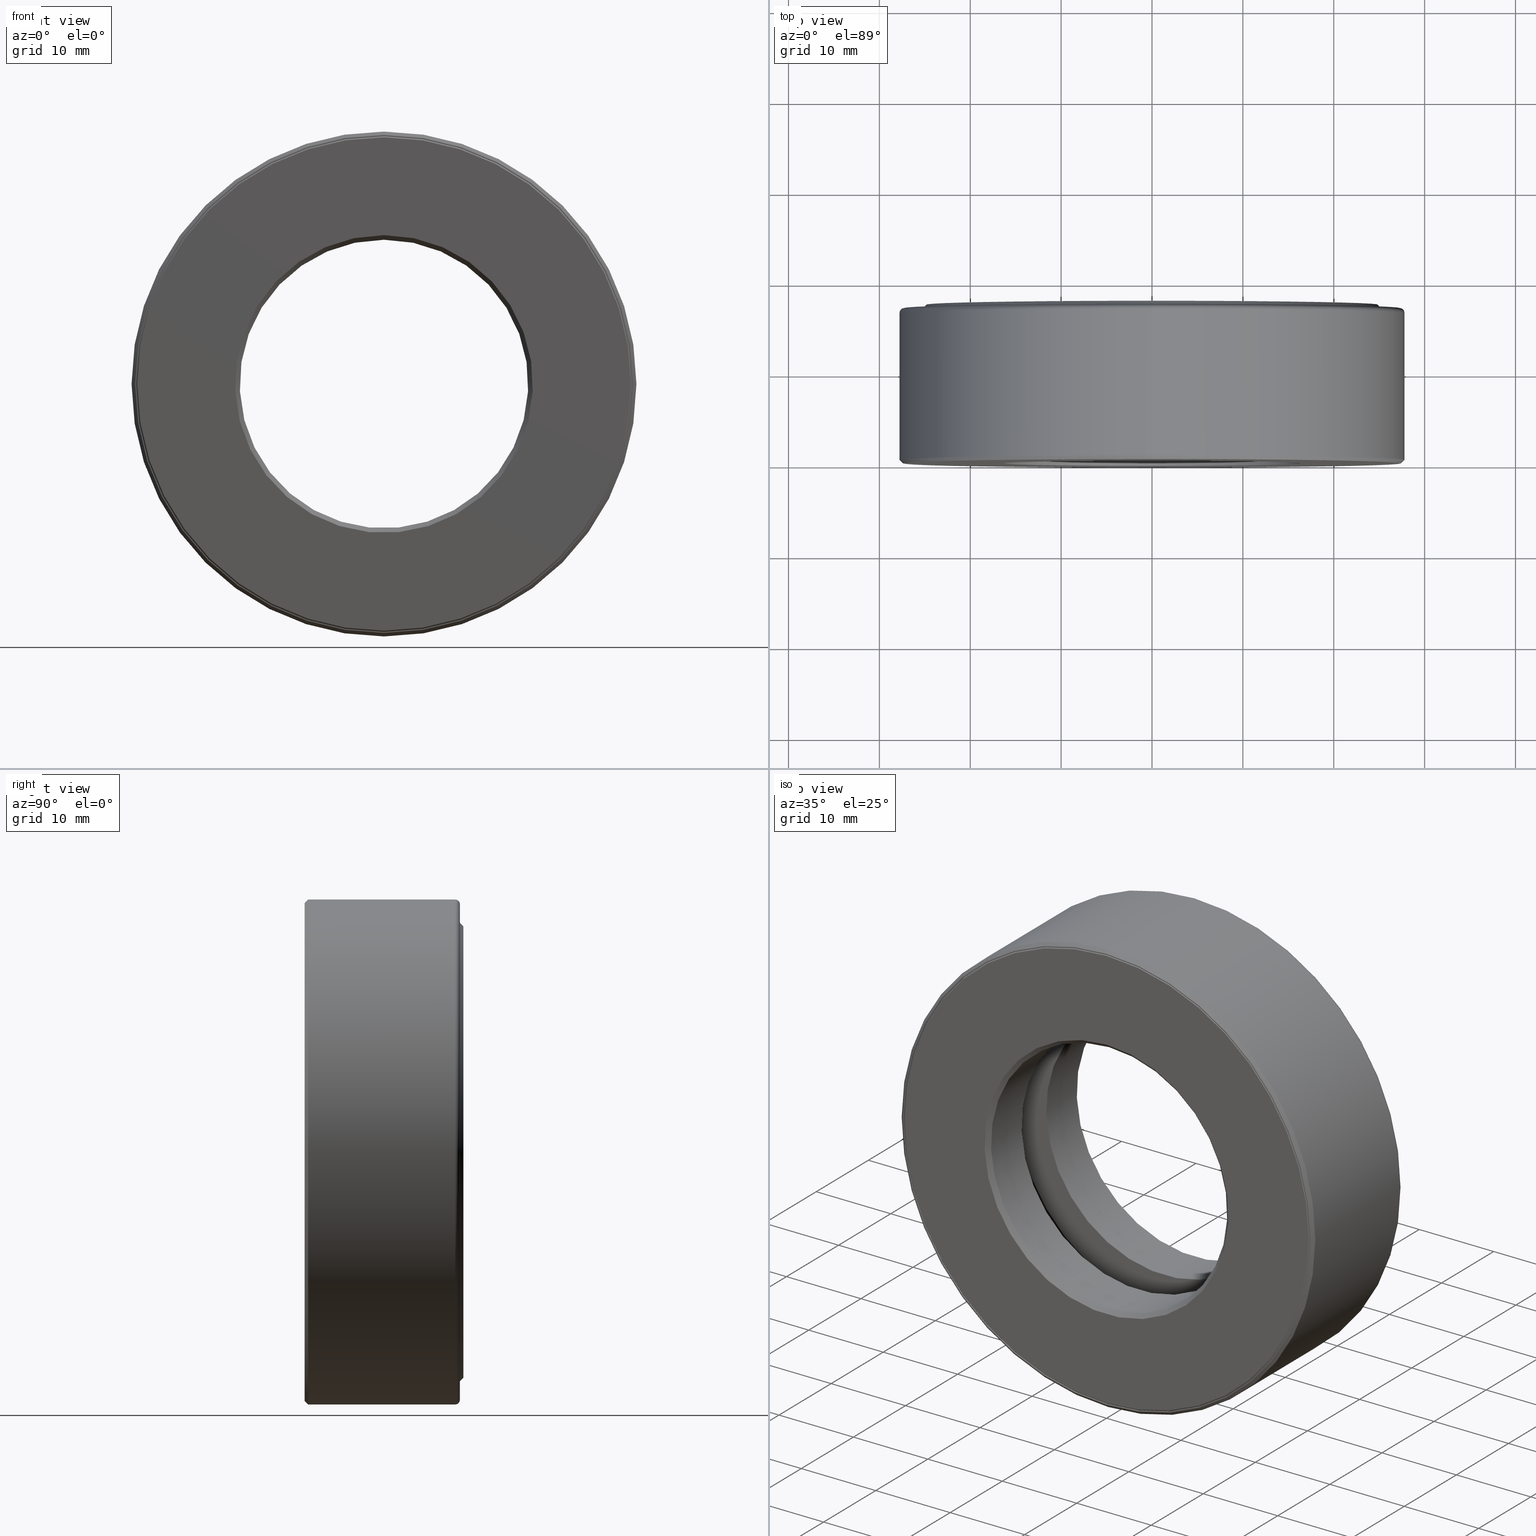
[diagram: canonical four-view strip — front | top / right | iso, engineering-drawing reading convention]
A machine part, canonical four-view strip (front | top / right | iso — engineering-drawing reading convention). The complete STEP part file that produces these views, byte-faithful:
ISO-10303-21;
HEADER;
FILE_DESCRIPTION (( 'STEP AP203' ),
    '1' );
FILE_NAME ('T-100-13.step',
    '2016-06-29T18:27:18',
    ( '' ),
    ( '' ),
    'SwSTEP 2.0',
    'SolidWorks 2016',
    '' );
FILE_SCHEMA (( 'CONFIG_CONTROL_DESIGN' ));
ENDSEC;

DATA;
#1 = CC_DESIGN_PERSON_AND_ORGANIZATION_ASSIGNMENT ( #442, #545, ( #248 ) ) ;
#2 = DIRECTION ( 'NONE',  ( -1.000000000000000000, 0.0000000000000000000, 3.491481338843134500E-015 ) ) ;
#3 = FACE_OUTER_BOUND ( 'NONE', #109, .T. ) ;
#4 = CONICAL_SURFACE ( 'NONE', #6, 1.068750000000000100, 0.7853981633974581600 ) ;
#5 = VERTEX_POINT ( 'NONE', #435 ) ;
#6 = AXIS2_PLACEMENT_3D ( 'NONE', #46, #39, #593 ) ;
#7 = ORIENTED_EDGE ( 'NONE', *, *, #564, .F. ) ;
#8 = PRODUCT ( 'T-100-13', 'T-100-13', '', ( #486 ) ) ;
#9 = ORIENTED_EDGE ( 'NONE', *, *, #113, .T. ) ;
#10 = ADVANCED_FACE ( 'NONE', ( #241, #43 ), #370, .T. ) ;
#11 = FACE_OUTER_BOUND ( 'NONE', #151, .T. ) ;
#12 = LOCAL_TIME ( 14, 27, 18.00000000000000000, #388 ) ;
#13 = ADVANCED_FACE ( 'NONE', ( #381, #456 ), #432, .T. ) ;
#14 = CYLINDRICAL_SURFACE ( 'NONE', #205, 0.6250000000000000000 ) ;
#15 = ORIENTED_EDGE ( 'NONE', *, *, #389, .F. ) ;
#16 = EDGE_CURVE ( 'NONE', #54, #54, #167, .T. ) ;
#17 = FACE_OUTER_BOUND ( 'NONE', #438, .T. ) ;
#18 =( NAMED_UNIT ( * ) SI_UNIT ( $, .STERADIAN. ) SOLID_ANGLE_UNIT ( ) );
#19 = ADVANCED_FACE ( 'NONE', ( ), #387, .T. ) ;
#20 = CIRCLE ( 'NONE', #292, 1.073749999999999800 ) ;
#21 = DIRECTION ( 'NONE',  ( -0.0000000000000000000, 1.000000000000000000, 0.0000000000000000000 ) ) ;
#22 = ORIENTED_EDGE ( 'NONE', *, *, #333, .F. ) ;
#23 = EDGE_LOOP ( 'NONE', ( #164 ) ) ;
#24 = APPROVAL ( #153, 'UNSPECIFIED' ) ;
#25 = APPROVAL_STATUS ( 'not_yet_approved' ) ;
#26 = CIRCLE ( 'NONE', #286, 1.073750000000000000 ) ;
#27 = PERSON_AND_ORGANIZATION ( #177, #458 ) ;
#28 = DIRECTION ( 'NONE',  ( -0.0000000000000000000, 1.000000000000000000, -0.0000000000000000000 ) ) ;
#29 = FACE_OUTER_BOUND ( 'NONE', #490, .T. ) ;
#30 = CARTESIAN_POINT ( 'NONE',  ( 0.0000000000000000000, 0.0000000000000000000, 0.0000000000000000000 ) ) ;
#31 = ORIENTED_EDGE ( 'NONE', *, *, #350, .F. ) ;
#32 = DIRECTION ( 'NONE',  ( -0.0000000000000000000, 1.000000000000000000, -0.0000000000000000000 ) ) ;
#33 = ORIENTED_EDGE ( 'NONE', *, *, #56, .T. ) ;
#34 = CC_DESIGN_APPROVAL ( #498, ( #485 ) ) ;
#35 = VERTEX_POINT ( 'NONE', #238 ) ;
#36 = DIRECTION ( 'NONE',  ( 0.0000000000000000000, 0.0000000000000000000, 1.000000000000000000 ) ) ;
#37 = CARTESIAN_POINT ( 'NONE',  ( 0.0000000000000000000, 0.0000000000000000000, 0.0000000000000000000 ) ) ;
#38 = EDGE_LOOP ( 'NONE', ( #7 ) ) ;
#39 = DIRECTION ( 'NONE',  ( -0.0000000000000000000, 1.000000000000000000, -0.0000000000000000000 ) ) ;
#40 = AXIS2_PLACEMENT_3D ( 'NONE', #252, #399, #200 ) ;
#41 = CARTESIAN_POINT ( 'NONE',  ( 0.0000000000000000000, 0.6524999999999997500, 0.0000000000000000000 ) ) ;
#42 = CARTESIAN_POINT ( 'NONE',  ( -3.231681380517675000E-016, 0.2500000000000000600, 0.0000000000000000000 ) ) ;
#43 = FACE_OUTER_BOUND ( 'NONE', #290, .T. ) ;
#44 = PERSON_AND_ORGANIZATION ( #177, #458 ) ;
#45 = DIRECTION ( 'NONE',  ( -0.0000000000000000000, 1.000000000000000000, -0.0000000000000000000 ) ) ;
#46 = CARTESIAN_POINT ( 'NONE',  ( 0.0000000000000000000, -6.296055922898108400E-017, 0.0000000000000000000 ) ) ;
#47 = EDGE_LOOP ( 'NONE', ( #94 ) ) ;
#48 = DIRECTION ( 'NONE',  ( -0.0000000000000000000, 1.000000000000000000, -0.0000000000000000000 ) ) ;
#49 = CARTESIAN_POINT ( 'NONE',  ( 0.0000000000000000000, 0.0000000000000000000, 0.0000000000000000000 ) ) ;
#50 = FACE_OUTER_BOUND ( 'NONE', #212, .T. ) ;
#51 = DIRECTION ( 'NONE',  ( -0.0000000000000000000, 1.000000000000000000, -0.0000000000000000000 ) ) ;
#52 = DIRECTION ( 'NONE',  ( 0.0000000000000000000, 0.0000000000000000000, 1.000000000000000000 ) ) ;
#53 = AXIS2_PLACEMENT_3D ( 'NONE', #460, #2, #567 ) ;
#54 = VERTEX_POINT ( 'NONE', #368 ) ;
#55 = ORIENTED_EDGE ( 'NONE', *, *, #129, .T. ) ;
#56 = EDGE_CURVE ( 'NONE', #250, #250, #549, .T. ) ;
#57 = CYLINDRICAL_SURFACE ( 'NONE', #163, 0.6250000000000000000 ) ;
#58 = ADVANCED_FACE ( 'NONE', ( ), #440, .T. ) ;
#59 = AXIS2_PLACEMENT_3D ( 'NONE', #414, #445, #496 ) ;
#60 = EDGE_CURVE ( 'NONE', #329, #329, #26, .T. ) ;
#61 = EDGE_LOOP ( 'NONE', ( #364 ) ) ;
#62 = ADVANCED_FACE ( 'NONE', ( ), #487, .T. ) ;
#63 = EDGE_LOOP ( 'NONE', ( #452 ) ) ;
#64 = ADVANCED_FACE ( 'NONE', ( #571, #536 ), #97, .T. ) ;
#65 = PRODUCT_RELATED_PRODUCT_CATEGORY ( 'detail', '', ( #8 ) ) ;
#66 = EDGE_LOOP ( 'NONE', ( #385 ) ) ;
#67 = APPROVAL_ROLE ( '' ) ;
#68 = AXIS2_PLACEMENT_3D ( 'NONE', #317, #318, #76 ) ;
#69 = CIRCLE ( 'NONE', #503, 0.6249999999999998900 ) ;
#70 = CALENDAR_DATE ( 2016, 29, 6 ) ;
#71 = APPROVAL_DATE_TIME ( #322, #24 ) ;
#72 = DIRECTION ( 'NONE',  ( -0.0000000000000000000, 1.000000000000000000, 0.0000000000000000000 ) ) ;
#73 = DIRECTION ( 'NONE',  ( 0.0000000000000000000, 0.0000000000000000000, 1.000000000000000000 ) ) ;
#74 = DIRECTION ( 'NONE',  ( 0.0000000000000000000, 0.0000000000000000000, 1.000000000000000000 ) ) ;
#75 = CIRCLE ( 'NONE', #378, 1.078750000000000100 ) ;
#76 = DIRECTION ( 'NONE',  ( 0.0000000000000000000, 0.0000000000000000000, -1.000000000000000000 ) ) ;
#77 = CARTESIAN_POINT ( 'NONE',  ( 0.0000000000000000000, 0.6724999999999998800, 0.0000000000000000000 ) ) ;
#78 = ORIENTED_EDGE ( 'NONE', *, *, #222, .T. ) ;
#79 = AXIS2_PLACEMENT_3D ( 'NONE', #439, #584, #73 ) ;
#80 = PLANE ( 'NONE',  #59 ) ;
#81 = CARTESIAN_POINT ( 'NONE',  ( 0.0000000000000000000, 0.0000000000000000000, 0.0000000000000000000 ) ) ;
#82 = FACE_OUTER_BOUND ( 'NONE', #236, .T. ) ;
#83 = PERSON_AND_ORGANIZATION ( #177, #458 ) ;
#84 = DIRECTION ( 'NONE',  ( 0.0000000000000000000, -1.000000000000000000, 0.0000000000000000000 ) ) ;
#85 = DIRECTION ( 'NONE',  ( -0.0000000000000000000, 1.000000000000000000, -0.0000000000000000000 ) ) ;
#86 = AXIS2_PLACEMENT_3D ( 'NONE', #525, #168, #513 ) ;
#87 = DIRECTION ( 'NONE',  ( -0.0000000000000000000, 1.000000000000000000, -0.0000000000000000000 ) ) ;
#88 = CARTESIAN_POINT ( 'NONE',  ( 0.0000000000000000000, 0.6524999999999997500, 0.0000000000000000000 ) ) ;
#89 = DIRECTION ( 'NONE',  ( 0.0000000000000000000, 0.0000000000000000000, 1.000000000000000000 ) ) ;
#90 = FACE_BOUND ( 'NONE', #284, .T. ) ;
#91 = CARTESIAN_POINT ( 'NONE',  ( 0.0000000000000000000, 0.6724999999999998800, 0.0000000000000000000 ) ) ;
#92 = DIRECTION ( 'NONE',  ( -0.0000000000000000000, 1.000000000000000000, -0.0000000000000000000 ) ) ;
#93 = VERTEX_POINT ( 'NONE', #431 ) ;
#94 = ORIENTED_EDGE ( 'NONE', *, *, #297, .T. ) ;
#95 = CARTESIAN_POINT ( 'NONE',  ( 0.0000000000000000000, 0.004999999999999648800, 0.0000000000000000000 ) ) ;
#96 = DIRECTION ( 'NONE',  ( 0.0000000000000000000, 0.0000000000000000000, -1.000000000000000000 ) ) ;
#97 = PLANE ( 'NONE',  #515 ) ;
#98 = EDGE_LOOP ( 'NONE', ( #450 ) ) ;
#99 = AXIS2_PLACEMENT_3D ( 'NONE', #504, #526, #524 ) ;
#100 = CARTESIAN_POINT ( 'NONE',  ( 0.0000000000000000000, -6.296055922898108400E-017, 1.068750000000000100 ) ) ;
#101 = EDGE_LOOP ( 'NONE', ( #55 ) ) ;
#102 = CONICAL_SURFACE ( 'NONE', #407, 1.078750000000000100, 0.7853981633974438400 ) ;
#103 = VERTEX_POINT ( 'NONE', #568 ) ;
#104 = EDGE_CURVE ( 'NONE', #483, #483, #423, .T. ) ;
#105 = CLOSED_SHELL ( 'NONE', ( #146, #235, #239, #145, #573, #193, #197, #340, #336, #291, #436, #433, #189, #534, #243, #468 ) ) ;
#106 = ORIENTED_EDGE ( 'NONE', *, *, #591, .T. ) ;
#107 = AXIS2_PLACEMENT_3D ( 'NONE', #510, #550, #505 ) ;
#108 = CIRCLE ( 'NONE', #386, 1.013750000000000200 ) ;
#109 = EDGE_LOOP ( 'NONE', ( #347 ) ) ;
#110 = ORIENTED_EDGE ( 'NONE', *, *, #16, .F. ) ;
#111 = CARTESIAN_POINT ( 'NONE',  ( 0.0000000000000000000, 0.6674999999999995400, 0.6250000000000000000 ) ) ;
#112 = DIRECTION ( 'NONE',  ( -0.0000000000000000000, 1.000000000000000000, -0.0000000000000000000 ) ) ;
#113 = EDGE_CURVE ( 'NONE', #244, #244, #139, .T. ) ;
#114 = FACE_BOUND ( 'NONE', #269, .T. ) ;
#115 = VERTEX_POINT ( 'NONE', #312 ) ;
#116 = DIRECTION ( 'NONE',  ( 0.0000000000000000000, -1.000000000000000000, 0.0000000000000000000 ) ) ;
#117 = ORIENTED_EDGE ( 'NONE', *, *, #157, .T. ) ;
#118 = ORIENTED_EDGE ( 'NONE', *, *, #389, .T. ) ;
#119 = CARTESIAN_POINT ( 'NONE',  ( -1.423893298184202300E-032, -3.148027961449054800E-017, 0.0000000000000000000 ) ) ;
#120 = CC_DESIGN_SECURITY_CLASSIFICATION ( #485, ( #248 ) ) ;
#121 = FACE_BOUND ( 'NONE', #477, .T. ) ;
#122 = VERTEX_POINT ( 'NONE', #572 ) ;
#123 = ORIENTED_EDGE ( 'NONE', *, *, #591, .F. ) ;
#124 = EDGE_LOOP ( 'NONE', ( #253 ) ) ;
#125 = AXIS2_PLACEMENT_3D ( 'NONE', #81, #268, #272 ) ;
#126 = DIRECTION ( 'NONE',  ( 0.0000000000000000000, 0.0000000000000000000, 1.000000000000000000 ) ) ;
#127 = FACE_BOUND ( 'NONE', #138, .T. ) ;
#128 = COORDINATED_UNIVERSAL_TIME_OFFSET ( 5, 0, .BEHIND. ) ;
#129 = EDGE_CURVE ( 'NONE', #122, #122, #369, .T. ) ;
#130 = VERTEX_POINT ( 'NONE', #178 ) ;
#131 = DIRECTION ( 'NONE',  ( -0.0000000000000000000, 1.000000000000000000, -0.0000000000000000000 ) ) ;
#132 = ORIENTED_EDGE ( 'NONE', *, *, #424, .F. ) ;
#133 = CYLINDRICAL_SURFACE ( 'NONE', #397, 1.073749999999999800 ) ;
#134 = CARTESIAN_POINT ( 'NONE',  ( 0.0000000000000000000, 0.2499999999999999200, 0.7834999999999999700 ) ) ;
#135 = CARTESIAN_POINT ( 'NONE',  ( 0.0000000000000000000, 0.6724999999999998800, 0.0000000000000000000 ) ) ;
#136 = VERTEX_POINT ( 'NONE', #188 ) ;
#137 = CLOSED_SHELL ( 'NONE', ( #58 ) ) ;
#138 = EDGE_LOOP ( 'NONE', ( #22 ) ) ;
#139 = CIRCLE ( 'NONE', #437, 1.068750000000000100 ) ;
#140 = APPROVAL_PERSON_ORGANIZATION ( #353, #498, #67 ) ;
#141 = AXIS2_PLACEMENT_3D ( 'NONE', #325, #282, #367 ) ;
#142 = FACE_BOUND ( 'NONE', #190, .T. ) ;
#143 = ORIENTED_EDGE ( 'NONE', *, *, #528, .T. ) ;
#144 = EDGE_LOOP ( 'NONE', ( #523 ) ) ;
#145 = ADVANCED_FACE ( 'NONE', ( #147, #247 ), #402, .F. ) ;
#146 = ADVANCED_FACE ( 'NONE', ( #50, #319 ), #257, .F. ) ;
#147 = FACE_OUTER_BOUND ( 'NONE', #261, .T. ) ;
#148 =( CONVERSION_BASED_UNIT ( 'INCH', #362 ) LENGTH_UNIT ( ) NAMED_UNIT ( #294 ) );
#149 = CARTESIAN_POINT ( 'NONE',  ( 0.0000000000000000000, 0.6524999999999997500, 0.0000000000000000000 ) ) ;
#150 = SECURITY_CLASSIFICATION_LEVEL ( 'unclassified' ) ;
#151 = EDGE_LOOP ( 'NONE', ( #143 ) ) ;
#152 = DIRECTION ( 'NONE',  ( -0.0000000000000000000, 1.000000000000000000, -0.0000000000000000000 ) ) ;
#153 = APPROVAL_STATUS ( 'not_yet_approved' ) ;
#154 = AXIS2_PLACEMENT_3D ( 'NONE', #41, #314, #356 ) ;
#155 = DATE_AND_TIME ( #547, #296 ) ;
#156 = DIRECTION ( 'NONE',  ( 0.0000000000000000000, 0.0000000000000000000, 1.000000000000000000 ) ) ;
#157 = EDGE_CURVE ( 'NONE', #35, #35, #276, .T. ) ;
#158 = PLANE ( 'NONE',  #480 ) ;
#159 = CC_DESIGN_PERSON_AND_ORGANIZATION_ASSIGNMENT ( #519, #303, ( #485 ) ) ;
#160 = DIRECTION ( 'NONE',  ( 0.0000000000000000000, 0.0000000000000000000, 1.000000000000000000 ) ) ;
#161 = EDGE_LOOP ( 'NONE', ( #408 ) ) ;
#162 = VERTEX_POINT ( 'NONE', #475 ) ;
#163 = AXIS2_PLACEMENT_3D ( 'NONE', #30, #28, #553 ) ;
#164 = ORIENTED_EDGE ( 'NONE', *, *, #380, .T. ) ;
#165 = DIRECTION ( 'NONE',  ( 0.0000000000000000000, 0.0000000000000000000, 1.000000000000000000 ) ) ;
#166 = PLANE ( 'NONE',  #566 ) ;
#167 = CIRCLE ( 'NONE', #229, 1.013750000000000200 ) ;
#168 = DIRECTION ( 'NONE',  ( -0.0000000000000000000, 1.000000000000000000, -0.0000000000000000000 ) ) ;
#169 = CARTESIAN_POINT ( 'NONE',  ( 0.0000000000000000000, -6.616194359655631800E-017, 0.0000000000000000000 ) ) ;
#170 = AXIS2_PLACEMENT_3D ( 'NONE', #226, #371, #173 ) ;
#171 = CARTESIAN_POINT ( 'NONE',  ( 0.0000000000000000000, 0.6674999999999995400, 0.0000000000000000000 ) ) ;
#172 = DIRECTION ( 'NONE',  ( 1.000000000000000000, 0.0000000000000000000, 0.0000000000000000000 ) ) ;
#173 = DIRECTION ( 'NONE',  ( 0.0000000000000000000, 0.0000000000000000000, 1.000000000000000000 ) ) ;
#174 = CARTESIAN_POINT ( 'NONE',  ( 0.0000000000000000000, 0.2500000000000001100, 0.6250000000000000000 ) ) ;
#175 = DIRECTION ( 'NONE',  ( -0.0000000000000000000, 1.000000000000000000, -0.0000000000000000000 ) ) ;
#176 = CIRCLE ( 'NONE', #548, 0.7834999999999999700 ) ;
#177 = PERSON ( 'UNSPECIFIED', 'UNSPECIFIED', 'UNSPECIFIED', ('UNSPECIFIED'), ('UNSPECIFIED'), ('UNSPECIFIED') ) ;
#178 = CARTESIAN_POINT ( 'NONE',  ( 0.0000000000000000000, 0.6875000000000000000, 0.6450000000000002400 ) ) ;
#179 = CARTESIAN_POINT ( 'NONE',  ( 0.0000000000000000000, 0.0000000000000000000, 0.0000000000000000000 ) ) ;
#180 = DIRECTION ( 'NONE',  ( -0.0000000000000000000, 1.000000000000000000, -0.0000000000000000000 ) ) ;
#181 = EDGE_LOOP ( 'NONE', ( #484 ) ) ;
#182 = ORIENTED_EDGE ( 'NONE', *, *, #222, .F. ) ;
#183 = DIRECTION ( 'NONE',  ( 0.0000000000000000000, -0.0000000000000000000, -1.000000000000000000 ) ) ;
#184 = FACE_OUTER_BOUND ( 'NONE', #552, .T. ) ;
#185 = EDGE_CURVE ( 'NONE', #162, #162, #541, .T. ) ;
#186 = LOCAL_TIME ( 14, 27, 18.00000000000000000, #128 ) ;
#187 = APPROVAL_PERSON_ORGANIZATION ( #83, #24, #395 ) ;
#188 = CARTESIAN_POINT ( 'NONE',  ( 0.0000000000000000000, 0.4375000000000000000, 1.066749999999999900 ) ) ;
#189 = ADVANCED_FACE ( 'NONE', ( #184, #288 ), #500, .F. ) ;
#190 = EDGE_LOOP ( 'NONE', ( #195 ) ) ;
#191 = UNCERTAINTY_MEASURE_WITH_UNIT (LENGTH_MEASURE( 1.000000000000000100E-005 ), #148, 'distance_accuracy_value', 'NONE');
#192 = FACE_OUTER_BOUND ( 'NONE', #478, .T. ) ;
#193 = ADVANCED_FACE ( 'NONE', ( #121, #201 ), #587, .F. ) ;
#194 = CIRCLE ( 'NONE', #154, 1.073750000000000000 ) ;
#195 = ORIENTED_EDGE ( 'NONE', *, *, #281, .T. ) ;
#196 = EDGE_CURVE ( 'NONE', #542, #542, #546, .T. ) ;
#197 = ADVANCED_FACE ( 'NONE', ( #3, #265 ), #494, .T. ) ;
#198 = DIRECTION ( 'NONE',  ( 0.0000000000000000000, 0.0000000000000000000, 1.000000000000000000 ) ) ;
#199 = PERSON_AND_ORGANIZATION_ROLE ( 'creator' ) ;
#200 = DIRECTION ( 'NONE',  ( 0.0000000000000000000, 0.0000000000000000000, 1.000000000000000000 ) ) ;
#201 = FACE_OUTER_BOUND ( 'NONE', #124, .T. ) ;
#202 = PERSON_AND_ORGANIZATION ( #177, #458 ) ;
#203 = PRODUCT_DEFINITION ( 'UNKNOWN', '', #248, #231 ) ;
#204 = DATE_TIME_ROLE ( 'classification_date' ) ;
#205 = AXIS2_PLACEMENT_3D ( 'NONE', #37, #51, #520 ) ;
#206 = CARTESIAN_POINT ( 'NONE',  ( 0.0000000000000000000, -6.398785730860387700E-017, 0.0000000000000000000 ) ) ;
#207 = CIRCLE ( 'NONE', #86, 1.066749999999999900 ) ;
#208 = CARTESIAN_POINT ( 'NONE',  ( 0.0000000000000000000, 0.01500000000000004500, 0.0000000000000000000 ) ) ;
#209 = DIRECTION ( 'NONE',  ( 0.0000000000000000000, -1.000000000000000000, 0.0000000000000000000 ) ) ;
#210 = FACE_OUTER_BOUND ( 'NONE', #469, .T. ) ;
#211 = PLANE ( 'NONE',  #342 ) ;
#212 = EDGE_LOOP ( 'NONE', ( #182 ) ) ;
#213 = DIRECTION ( 'NONE',  ( -0.0000000000000000000, 1.000000000000000000, -0.0000000000000000000 ) ) ;
#214 = CC_DESIGN_PERSON_AND_ORGANIZATION_ASSIGNMENT ( #383, #581, ( #8 ) ) ;
#215 = DIRECTION ( 'NONE',  ( -0.0000000000000000000, 1.000000000000000000, -0.0000000000000000000 ) ) ;
#216 = CIRCLE ( 'NONE', #338, 0.6450000000000002400 ) ;
#217 = VERTEX_POINT ( 'NONE', #232 ) ;
#218 = CARTESIAN_POINT ( 'NONE',  ( 0.0000000000000000000, 0.6875000000000000000, 0.0000000000000000000 ) ) ;
#219 = AXIS2_PLACEMENT_3D ( 'NONE', #358, #215, #409 ) ;
#220 = ORIENTED_EDGE ( 'NONE', *, *, #129, .F. ) ;
#221 = DIRECTION ( 'NONE',  ( -0.0000000000000000000, 1.000000000000000000, -0.0000000000000000000 ) ) ;
#222 = EDGE_CURVE ( 'NONE', #234, #234, #176, .T. ) ;
#223 = CARTESIAN_POINT ( 'NONE',  ( 0.0000000000000000000, 0.4375000000000000000, 0.0000000000000000000 ) ) ;
#224 = CIRCLE ( 'NONE', #580, 1.073749999999999800 ) ;
#225 = CARTESIAN_POINT ( 'NONE',  ( 0.0000000000000000000, -6.616194359655631800E-017, 0.0000000000000000000 ) ) ;
#226 = CARTESIAN_POINT ( 'NONE',  ( 0.0000000000000000000, 0.4375000000000000000, 0.0000000000000000000 ) ) ;
#227 = ADVANCED_FACE ( 'NONE', ( #411, #127 ), #158, .T. ) ;
#228 = EDGE_LOOP ( 'NONE', ( #592 ) ) ;
#229 = AXIS2_PLACEMENT_3D ( 'NONE', #91, #330, #52 ) ;
#230 = FACE_OUTER_BOUND ( 'NONE', #588, .T. ) ;
#231 = DESIGN_CONTEXT ( 'detailed design', #493, 'design' ) ;
#232 = CARTESIAN_POINT ( 'NONE',  ( 0.0000000000000000000, 0.6524999999999997500, 1.013750000000000200 ) ) ;
#233 = EDGE_CURVE ( 'NONE', #260, #260, #394, .T. ) ;
#234 = VERTEX_POINT ( 'NONE', #134 ) ;
#235 = ADVANCED_FACE ( 'NONE', ( #506, #361 ), #211, .F. ) ;
#236 = EDGE_LOOP ( 'NONE', ( #31 ) ) ;
#237 = CC_DESIGN_PERSON_AND_ORGANIZATION_ASSIGNMENT ( #27, #393, ( #248 ) ) ;
#238 = CARTESIAN_POINT ( 'NONE',  ( 0.0000000000000000000, 0.01500000000000004500, 1.093750000000000000 ) ) ;
#239 = ADVANCED_FACE ( 'NONE', ( #82, #11 ), #133, .F. ) ;
#240 = CARTESIAN_POINT ( 'NONE',  ( 0.0000000000000000000, 0.5995000000000001400, 1.066749999999999900 ) ) ;
#241 = FACE_BOUND ( 'NONE', #384, .T. ) ;
#242 = AXIS2_PLACEMENT_3D ( 'NONE', #77, #209, #447 ) ;
#243 = ADVANCED_FACE ( 'NONE', ( #310, #17 ), #57, .F. ) ;
#244 = VERTEX_POINT ( 'NONE', #100 ) ;
#245 = EDGE_LOOP ( 'NONE', ( #132 ) ) ;
#246 = DATE_TIME_ROLE ( 'creation_date' ) ;
#247 = FACE_BOUND ( 'NONE', #47, .T. ) ;
#248 = PRODUCT_DEFINITION_FORMATION_WITH_SPECIFIED_SOURCE ( 'ANY', '', #8, .NOT_KNOWN. ) ;
#249 = APPLICATION_PROTOCOL_DEFINITION ( 'international standard', 'config_control_design', 1994, #258 ) ;
#250 = VERTEX_POINT ( 'NONE', #174 ) ;
#251 = ORIENTED_EDGE ( 'NONE', *, *, #233, .T. ) ;
#252 = CARTESIAN_POINT ( 'NONE',  ( 0.0000000000000000000, 0.3437500000000000000, 0.0000000000000000000 ) ) ;
#253 = ORIENTED_EDGE ( 'NONE', *, *, #60, .T. ) ;
#254 = DIRECTION ( 'NONE',  ( 1.000000000000000000, 0.0000000000000000000, 0.0000000000000000000 ) ) ;
#255 = AXIS2_PLACEMENT_3D ( 'NONE', #206, #32, #165 ) ;
#256 =( LENGTH_UNIT ( ) NAMED_UNIT ( * ) SI_UNIT ( $, .METRE. ) );
#257 = TOROIDAL_SURFACE ( 'NONE', #40, 0.9084999999999998600, 0.1562499999999999700 ) ;
#258 = APPLICATION_CONTEXT ( 'configuration controlled 3d designs of mechanical parts and assemblies' ) ;
#259 = CALENDAR_DATE ( 2016, 29, 6 ) ;
#260 = VERTEX_POINT ( 'NONE', #529 ) ;
#261 = EDGE_LOOP ( 'NONE', ( #271 ) ) ;
#262 = AXIS2_PLACEMENT_3D ( 'NONE', #171, #48, #89 ) ;
#263 = DIRECTION ( 'NONE',  ( 0.0000000000000000000, -0.0000000000000000000, -1.000000000000000000 ) ) ;
#264 = DIRECTION ( 'NONE',  ( 0.0000000000000000000, -0.0000000000000000000, -1.000000000000000000 ) ) ;
#265 = FACE_OUTER_BOUND ( 'NONE', #101, .T. ) ;
#266 = CARTESIAN_POINT ( 'NONE',  ( 0.0000000000000000000, 0.02000000000000046900, 0.0000000000000000000 ) ) ;
#267 = AXIS2_PLACEMENT_3D ( 'NONE', #208, #131, #426 ) ;
#268 = DIRECTION ( 'NONE',  ( -0.0000000000000000000, 1.000000000000000000, -0.0000000000000000000 ) ) ;
#269 = EDGE_LOOP ( 'NONE', ( #123 ) ) ;
#270 = DIRECTION ( 'NONE',  ( -0.0000000000000000000, 1.000000000000000000, -0.0000000000000000000 ) ) ;
#271 = ORIENTED_EDGE ( 'NONE', *, *, #528, .F. ) ;
#272 = DIRECTION ( 'NONE',  ( 0.0000000000000000000, 0.0000000000000000000, 1.000000000000000000 ) ) ;
#273 = DIRECTION ( 'NONE',  ( 0.0000000000000000000, 0.0000000000000000000, 1.000000000000000000 ) ) ;
#274 = APPROVAL ( #309, 'UNSPECIFIED' ) ;
#275 = DIRECTION ( 'NONE',  ( -0.0000000000000000000, 1.000000000000000000, -0.0000000000000000000 ) ) ;
#276 = CIRCLE ( 'NONE', #267, 1.093750000000000000 ) ;
#277 = CARTESIAN_POINT ( 'NONE',  ( 0.0000000000000000000, 0.2499999999999998900, 0.0000000000000000000 ) ) ;
#278 = APPROVAL_DATE_TIME ( #405, #274 ) ;
#279 = DIRECTION ( 'NONE',  ( 0.0000000000000000000, 0.0000000000000000000, 1.000000000000000000 ) ) ;
#280 = FACE_OUTER_BOUND ( 'NONE', #305, .T. ) ;
#281 = EDGE_CURVE ( 'NONE', #355, #355, #69, .T. ) ;
#282 = DIRECTION ( 'NONE',  ( 0.0000000000000000000, -1.000000000000000000, 0.0000000000000000000 ) ) ;
#283 = CARTESIAN_POINT ( 'NONE',  ( 0.0000000000000000000, 0.0000000000000000000, 0.0000000000000000000 ) ) ;
#284 = EDGE_LOOP ( 'NONE', ( #428 ) ) ;
#285 = DIRECTION ( 'NONE',  ( 0.0000000000000000000, 0.0000000000000000000, 1.000000000000000000 ) ) ;
#286 = AXIS2_PLACEMENT_3D ( 'NONE', #135, #382, #530 ) ;
#287 = DIRECTION ( 'NONE',  ( 1.000000000000000000, 0.0000000000000000000, -1.047444401652940000E-014 ) ) ;
#288 = FACE_BOUND ( 'NONE', #98, .T. ) ;
#289 = MANIFOLD_SOLID_BREP ( 'Revolve2[1]', #105 ) ;
#290 = EDGE_LOOP ( 'NONE', ( #489 ) ) ;
#291 = ADVANCED_FACE ( 'NONE', ( #579, #403 ), #80, .F. ) ;
#292 = AXIS2_PLACEMENT_3D ( 'NONE', #95, #87, #464 ) ;
#293 = CARTESIAN_POINT ( 'NONE',  ( 0.0000000000000000000, 0.4375000000000000000, 0.7834999999999999700 ) ) ;
#294 = DIMENSIONAL_EXPONENTS ( 1.000000000000000000, 0.0000000000000000000, 0.0000000000000000000, 0.0000000000000000000, 0.0000000000000000000, 0.0000000000000000000, 0.0000000000000000000 ) ;
#295 = FACE_BOUND ( 'NONE', #512, .T. ) ;
#296 = LOCAL_TIME ( 14, 27, 18.00000000000000000, #601 ) ;
#297 = EDGE_CURVE ( 'NONE', #217, #217, #108, .T. ) ;
#298 = CARTESIAN_POINT ( 'NONE',  ( 0.0000000000000000000, 0.6524999999999997500, 1.073750000000000000 ) ) ;
#299 = EDGE_CURVE ( 'NONE', #103, #103, #345, .T. ) ;
#300 =( GEOMETRIC_REPRESENTATION_CONTEXT ( 3 ) GLOBAL_UNCERTAINTY_ASSIGNED_CONTEXT ( ( #191 ) ) GLOBAL_UNIT_ASSIGNED_CONTEXT ( ( #148, #401, #18 ) ) REPRESENTATION_CONTEXT ( 'NONE', 'WORKASPACE' ) );
#301 = CLOSED_SHELL ( 'NONE', ( #19 ) ) ;
#302 = FACE_OUTER_BOUND ( 'NONE', #499, .T. ) ;
#303 = PERSON_AND_ORGANIZATION_ROLE ( 'classification_officer' ) ;
#304 = EDGE_LOOP ( 'NONE', ( #348 ) ) ;
#305 = EDGE_LOOP ( 'NONE', ( #15 ) ) ;
#306 = AXIS2_PLACEMENT_3D ( 'NONE', #315, #213, #454 ) ;
#307 = CARTESIAN_POINT ( 'NONE',  ( 0.0000000000000000000, 0.6524999999999997500, 0.0000000000000000000 ) ) ;
#308 = CARTESIAN_POINT ( 'NONE',  ( 0.0000000000000000000, 0.2499999999999998900, 1.033499999999999900 ) ) ;
#309 = APPROVAL_STATUS ( 'not_yet_approved' ) ;
#310 = FACE_OUTER_BOUND ( 'NONE', #228, .T. ) ;
#311 = AXIS2_PLACEMENT_3D ( 'NONE', #600, #344, #254 ) ;
#312 = CARTESIAN_POINT ( 'NONE',  ( 0.0000000000000000000, 0.004999999999999648800, 1.073749999999999800 ) ) ;
#313 = CARTESIAN_POINT ( 'NONE',  ( -2.120999995080952400E-016, 0.2499999999999998600, 0.0000000000000000000 ) ) ;
#314 = DIRECTION ( 'NONE',  ( -0.0000000000000000000, 1.000000000000000000, -0.0000000000000000000 ) ) ;
#315 = CARTESIAN_POINT ( 'NONE',  ( 0.0000000000000000000, 0.4374999999999998300, 0.0000000000000000000 ) ) ;
#316 = CLOSED_SHELL ( 'NONE', ( #62 ) ) ;
#317 = CARTESIAN_POINT ( 'NONE',  ( 0.0000000000000000000, 0.02000000000000046900, 0.0000000000000000000 ) ) ;
#318 = DIRECTION ( 'NONE',  ( 0.0000000000000000000, -1.000000000000000000, 0.0000000000000000000 ) ) ;
#319 = FACE_OUTER_BOUND ( 'NONE', #181, .T. ) ;
#320 = DATE_AND_TIME ( #70, #186 ) ;
#321 = AXIS2_PLACEMENT_3D ( 'NONE', #605, #180, #569 ) ;
#322 = DATE_AND_TIME ( #575, #443 ) ;
#323 = CARTESIAN_POINT ( 'NONE',  ( 0.0000000000000000000, 0.4375000000000000000, 0.0000000000000000000 ) ) ;
#324 = ORIENTED_EDGE ( 'NONE', *, *, #233, .F. ) ;
#325 = CARTESIAN_POINT ( 'NONE',  ( 3.770294943937266500E-016, 0.4374999999999998900, 0.0000000000000000000 ) ) ;
#326 = DIRECTION ( 'NONE',  ( -0.0000000000000000000, 1.000000000000000000, -0.0000000000000000000 ) ) ;
#327 = DIRECTION ( 'NONE',  ( -0.0000000000000000000, 1.000000000000000000, -0.0000000000000000000 ) ) ;
#328 = FACE_OUTER_BOUND ( 'NONE', #357, .T. ) ;
#329 = VERTEX_POINT ( 'NONE', #471 ) ;
#330 = DIRECTION ( 'NONE',  ( -0.0000000000000000000, 1.000000000000000000, -0.0000000000000000000 ) ) ;
#331 = ORIENTED_EDGE ( 'NONE', *, *, #333, .T. ) ;
#332 = DIRECTION ( 'NONE',  ( 1.047444401652940000E-014, 0.0000000000000000000, 1.000000000000000000 ) ) ;
#333 = EDGE_CURVE ( 'NONE', #130, #130, #216, .T. ) ;
#334 = DATE_AND_TIME ( #495, #12 ) ;
#335 = COORDINATED_UNIVERSAL_TIME_OFFSET ( 5, 0, .BEHIND. ) ;
#336 = ADVANCED_FACE ( 'NONE', ( #230, #295 ), #102, .T. ) ;
#337 = CC_DESIGN_DATE_AND_TIME_ASSIGNMENT ( #320, #204, ( #485 ) ) ;
#338 = AXIS2_PLACEMENT_3D ( 'NONE', #218, #221, #461 ) ;
#339 = CIRCLE ( 'NONE', #470, 0.7834999999999999700 ) ;
#340 = ADVANCED_FACE ( 'NONE', ( #474, #417 ), #352, .T. ) ;
#341 = FACE_OUTER_BOUND ( 'NONE', #343, .T. ) ;
#342 = AXIS2_PLACEMENT_3D ( 'NONE', #313, #116, #264 ) ;
#343 = EDGE_LOOP ( 'NONE', ( #594 ) ) ;
#344 = DIRECTION ( 'NONE',  ( 0.0000000000000000000, 0.0000000000000000000, 1.000000000000000000 ) ) ;
#345 = CIRCLE ( 'NONE', #170, 1.033499999999999900 ) ;
#346 = FACE_OUTER_BOUND ( 'NONE', #23, .T. ) ;
#347 = ORIENTED_EDGE ( 'NONE', *, *, #60, .F. ) ;
#348 = ORIENTED_EDGE ( 'NONE', *, *, #196, .T. ) ;
#349 = AXIS2_PLACEMENT_3D ( 'NONE', #561, #96, #172 ) ;
#350 = EDGE_CURVE ( 'NONE', #93, #93, #224, .T. ) ;
#351 = CARTESIAN_POINT ( 'NONE',  ( 0.0000000000000000000, 0.2499999999999999200, 0.0000000000000000000 ) ) ;
#352 = CYLINDRICAL_SURFACE ( 'NONE', #373, 1.093750000000000000 ) ;
#353 = PERSON_AND_ORGANIZATION ( #177, #458 ) ;
#354 = DIRECTION ( 'NONE',  ( -0.0000000000000000000, 1.000000000000000000, -0.0000000000000000000 ) ) ;
#355 = VERTEX_POINT ( 'NONE', #472 ) ;
#356 = DIRECTION ( 'NONE',  ( 0.0000000000000000000, 0.0000000000000000000, 1.000000000000000000 ) ) ;
#357 = EDGE_LOOP ( 'NONE', ( #78 ) ) ;
#358 = CARTESIAN_POINT ( 'NONE',  ( 0.0000000000000000000, 0.6524999999999997500, 0.0000000000000000000 ) ) ;
#359 = EDGE_LOOP ( 'NONE', ( #118 ) ) ;
#360 = CARTESIAN_POINT ( 'NONE',  ( 0.0000000000000000000, 0.0000000000000000000, 0.0000000000000000000 ) ) ;
#361 = FACE_OUTER_BOUND ( 'NONE', #398, .T. ) ;
#362 = LENGTH_MEASURE_WITH_UNIT ( LENGTH_MEASURE( 0.02539999999999999900 ), #256 );
#363 = DIRECTION ( 'NONE',  ( 0.0000000000000000000, 0.0000000000000000000, 1.000000000000000000 ) ) ;
#364 = ORIENTED_EDGE ( 'NONE', *, *, #576, .F. ) ;
#365 = ORIENTED_EDGE ( 'NONE', *, *, #104, .F. ) ;
#366 = AXIS2_PLACEMENT_3D ( 'NONE', #277, #462, #597 ) ;
#367 = DIRECTION ( 'NONE',  ( 0.0000000000000000000, -0.0000000000000000000, -1.000000000000000000 ) ) ;
#368 = CARTESIAN_POINT ( 'NONE',  ( 0.0000000000000000000, 0.6724999999999998800, 1.013750000000000200 ) ) ;
#369 = CIRCLE ( 'NONE', #556, 1.093750000000000000 ) ;
#370 = PLANE ( 'NONE',  #141 ) ;
#371 = DIRECTION ( 'NONE',  ( -0.0000000000000000000, 1.000000000000000000, -0.0000000000000000000 ) ) ;
#372 = APPROVAL_DATE_TIME ( #334, #498 ) ;
#373 = AXIS2_PLACEMENT_3D ( 'NONE', #49, #562, #285 ) ;
#374 = CARTESIAN_POINT ( 'NONE',  ( 0.0000000000000000000, 0.3437500000000000000, 0.0000000000000000000 ) ) ;
#375 = CIRCLE ( 'NONE', #366, 1.033499999999999900 ) ;
#376 = EDGE_LOOP ( 'NONE', ( #365 ) ) ;
#377 = DIRECTION ( 'NONE',  ( 0.0000000000000000000, 0.0000000000000000000, 1.000000000000000000 ) ) ;
#378 = AXIS2_PLACEMENT_3D ( 'NONE', #169, #518, #279 ) ;
#379 = CARTESIAN_POINT ( 'NONE',  ( 0.0000000000000000000, 0.6875000000000000000, 0.9787499999999997900 ) ) ;
#380 = EDGE_CURVE ( 'NONE', #467, #467, #339, .T. ) ;
#381 = FACE_OUTER_BOUND ( 'NONE', #359, .T. ) ;
#382 = DIRECTION ( 'NONE',  ( -0.0000000000000000000, 1.000000000000000000, -0.0000000000000000000 ) ) ;
#383 = PERSON_AND_ORGANIZATION ( #177, #458 ) ;
#384 = EDGE_LOOP ( 'NONE', ( #251 ) ) ;
#385 = ORIENTED_EDGE ( 'NONE', *, *, #196, .F. ) ;
#386 = AXIS2_PLACEMENT_3D ( 'NONE', #88, #92, #126 ) ;
#387 = SPHERICAL_SURFACE ( 'NONE', #349, 0.1562500000000000000 ) ;
#388 = COORDINATED_UNIVERSAL_TIME_OFFSET ( 5, 0, .BEHIND. ) ;
#389 = EDGE_CURVE ( 'NONE', #488, #488, #207, .T. ) ;
#390 = TOROIDAL_SURFACE ( 'NONE', #596, 0.9084999999999998600, 0.1562499999999999200 ) ;
#391 = ORIENTED_EDGE ( 'NONE', *, *, #404, .T. ) ;
#392 = EDGE_LOOP ( 'NONE', ( #9 ) ) ;
#393 = PERSON_AND_ORGANIZATION_ROLE ( 'design_supplier' ) ;
#394 = CIRCLE ( 'NONE', #306, 0.6250000000000000000 ) ;
#395 = APPROVAL_ROLE ( '' ) ;
#396 = ADVANCED_FACE ( 'NONE', ( #192, #114 ), #585, .F. ) ;
#397 = AXIS2_PLACEMENT_3D ( 'NONE', #360, #555, #412 ) ;
#398 = EDGE_LOOP ( 'NONE', ( #543 ) ) ;
#399 = DIRECTION ( 'NONE',  ( -0.0000000000000000000, 1.000000000000000000, -0.0000000000000000000 ) ) ;
#400 = EDGE_LOOP ( 'NONE', ( #117 ) ) ;
#401 =( NAMED_UNIT ( * ) PLANE_ANGLE_UNIT ( ) SI_UNIT ( $, .RADIAN. ) );
#402 = PLANE ( 'NONE',  #444 ) ;
#403 = FACE_BOUND ( 'NONE', #304, .T. ) ;
#404 = EDGE_CURVE ( 'NONE', #136, #136, #463, .T. ) ;
#405 = DATE_AND_TIME ( #259, #537 ) ;
#406 = VERTEX_POINT ( 'NONE', #298 ) ;
#407 = AXIS2_PLACEMENT_3D ( 'NONE', #225, #85, #598 ) ;
#408 = ORIENTED_EDGE ( 'NONE', *, *, #404, .F. ) ;
#409 = DIRECTION ( 'NONE',  ( 0.0000000000000000000, 0.0000000000000000000, 1.000000000000000000 ) ) ;
#410 = AXIS2_PLACEMENT_3D ( 'NONE', #283, #327, #363 ) ;
#411 = FACE_OUTER_BOUND ( 'NONE', #516, .T. ) ;
#412 = DIRECTION ( 'NONE',  ( 0.0000000000000000000, 0.0000000000000000000, 1.000000000000000000 ) ) ;
#413 = VERTEX_POINT ( 'NONE', #308 ) ;
#414 = CARTESIAN_POINT ( 'NONE',  ( -1.751974655613626800E-031, -6.507490045258007300E-017, 0.0000000000000000000 ) ) ;
#415 = CLOSED_SHELL ( 'NONE', ( #64, #540, #10, #544, #396, #227, #13, #479 ) ) ;
#416 = DIRECTION ( 'NONE',  ( 0.0000000000000000000, 0.0000000000000000000, 1.000000000000000000 ) ) ;
#417 = FACE_OUTER_BOUND ( 'NONE', #400, .T. ) ;
#418 = AXIS2_PLACEMENT_3D ( 'NONE', #595, #514, #602 ) ;
#419 = DIRECTION ( 'NONE',  ( 0.0000000000000000000, 0.0000000000000000000, 1.000000000000000000 ) ) ;
#420 = PRODUCT_DEFINITION_SHAPE ( 'NONE', 'NONE',  #203 ) ;
#421 = ORIENTED_EDGE ( 'NONE', *, *, #564, .T. ) ;
#422 = CARTESIAN_POINT ( 'NONE',  ( 0.0000000000000000000, 0.6875000000000000000, 0.0000000000000000000 ) ) ;
#423 = CIRCLE ( 'NONE', #79, 0.9787499999999997900 ) ;
#424 = EDGE_CURVE ( 'NONE', #5, #5, #75, .T. ) ;
#425 = AXIS2_PLACEMENT_3D ( 'NONE', #179, #459, #419 ) ;
#426 = DIRECTION ( 'NONE',  ( 0.0000000000000000000, 0.0000000000000000000, 1.000000000000000000 ) ) ;
#427 = FACE_OUTER_BOUND ( 'NONE', #144, .T. ) ;
#428 = ORIENTED_EDGE ( 'NONE', *, *, #56, .F. ) ;
#429 = CARTESIAN_POINT ( 'NONE',  ( 0.0000000000000000000, 0.4375000000000000000, 0.0000000000000000000 ) ) ;
#430 = AXIS2_PLACEMENT_3D ( 'NONE', #465, #287, #332 ) ;
#431 = CARTESIAN_POINT ( 'NONE',  ( 0.0000000000000000000, 0.2499999999999998600, 1.073749999999999800 ) ) ;
#432 = CONICAL_SURFACE ( 'NONE', #590, 0.9787499999999997900, 0.7853981633974490600 ) ;
#433 = ADVANCED_FACE ( 'NONE', ( #563, #599 ), #4, .T. ) ;
#434 = EDGE_LOOP ( 'NONE', ( #539 ) ) ;
#435 = CARTESIAN_POINT ( 'NONE',  ( 0.0000000000000000000, -6.616194359655631800E-017, 1.078750000000000100 ) ) ;
#436 = ADVANCED_FACE ( 'NONE', ( #481, #446 ), #558, .F. ) ;
#437 = AXIS2_PLACEMENT_3D ( 'NONE', #582, #152, #156 ) ;
#438 = EDGE_LOOP ( 'NONE', ( #33 ) ) ;
#439 = CARTESIAN_POINT ( 'NONE',  ( 0.0000000000000000000, 0.6875000000000000000, 0.0000000000000000000 ) ) ;
#440 = SPHERICAL_SURFACE ( 'NONE', #430, 0.1562500000000000000 ) ;
#441 = MANIFOLD_SOLID_BREP ( 'BALLS[2]', #554 ) ;
#442 = PERSON_AND_ORGANIZATION ( #177, #458 ) ;
#443 = LOCAL_TIME ( 14, 27, 18.00000000000000000, #335 ) ;
#444 = AXIS2_PLACEMENT_3D ( 'NONE', #307, #21, #491 ) ;
#445 = DIRECTION ( 'NONE',  ( -0.0000000000000000000, 1.000000000000000000, 0.0000000000000000000 ) ) ;
#446 = FACE_OUTER_BOUND ( 'NONE', #522, .T. ) ;
#447 = DIRECTION ( 'NONE',  ( 0.0000000000000000000, -0.0000000000000000000, -1.000000000000000000 ) ) ;
#448 = CIRCLE ( 'NONE', #262, 0.6250000000000000000 ) ;
#449 = CARTESIAN_POINT ( 'NONE',  ( 0.0000000000000000000, 0.6875000000000000000, 0.0000000000000000000 ) ) ;
#450 = ORIENTED_EDGE ( 'NONE', *, *, #185, .T. ) ;
#451 = CC_DESIGN_DATE_AND_TIME_ASSIGNMENT ( #155, #246, ( #203 ) ) ;
#452 = ORIENTED_EDGE ( 'NONE', *, *, #299, .T. ) ;
#453 = MANIFOLD_SOLID_BREP ( 'BALLS[3]', #137 ) ;
#454 = DIRECTION ( 'NONE',  ( 0.0000000000000000000, 0.0000000000000000000, 1.000000000000000000 ) ) ;
#455 = AXIS2_PLACEMENT_3D ( 'NONE', #119, #586, #74 ) ;
#456 = FACE_BOUND ( 'NONE', #376, .T. ) ;
#457 = MANIFOLD_SOLID_BREP ( 'Revolve3', #301 ) ;
#458 = ORGANIZATION ( 'UNSPECIFIED', 'UNSPECIFIED', '' ) ;
#459 = DIRECTION ( 'NONE',  ( -0.0000000000000000000, 1.000000000000000000, -0.0000000000000000000 ) ) ;
#460 = CARTESIAN_POINT ( 'NONE',  ( 3.172010796338986400E-015, 0.3437500000000000000, 0.9084999999999998600 ) ) ;
#461 = DIRECTION ( 'NONE',  ( 0.0000000000000000000, 0.0000000000000000000, 1.000000000000000000 ) ) ;
#462 = DIRECTION ( 'NONE',  ( -0.0000000000000000000, 1.000000000000000000, -0.0000000000000000000 ) ) ;
#463 = CIRCLE ( 'NONE', #533, 1.066749999999999900 ) ;
#464 = DIRECTION ( 'NONE',  ( 0.0000000000000000000, 0.0000000000000000000, 1.000000000000000000 ) ) ;
#465 = CARTESIAN_POINT ( 'NONE',  ( -9.516032389016959100E-015, 0.3437500000000000000, -0.9084999999999998600 ) ) ;
#466 = CARTESIAN_POINT ( 'NONE',  ( 0.0000000000000000000, 0.2499999999999998600, 0.0000000000000000000 ) ) ;
#467 = VERTEX_POINT ( 'NONE', #293 ) ;
#468 = ADVANCED_FACE ( 'NONE', ( #90, #328 ), #166, .F. ) ;
#469 = EDGE_LOOP ( 'NONE', ( #106 ) ) ;
#470 = AXIS2_PLACEMENT_3D ( 'NONE', #323, #275, #273 ) ;
#471 = CARTESIAN_POINT ( 'NONE',  ( 0.0000000000000000000, 0.6724999999999998800, 1.073750000000000000 ) ) ;
#472 = CARTESIAN_POINT ( 'NONE',  ( 0.0000000000000000000, 0.02000000000000046900, 0.6249999999999998900 ) ) ;
#473 = DIRECTION ( 'NONE',  ( 0.0000000000000000000, -1.000000000000000000, 0.0000000000000000000 ) ) ;
#474 = FACE_OUTER_BOUND ( 'NONE', #604, .T. ) ;
#475 = CARTESIAN_POINT ( 'NONE',  ( 0.0000000000000000000, 0.0000000000000000000, 0.6450000000000001300 ) ) ;
#476 = FACE_OUTER_BOUND ( 'NONE', #577, .T. ) ;
#477 = EDGE_LOOP ( 'NONE', ( #110 ) ) ;
#478 = EDGE_LOOP ( 'NONE', ( #331 ) ) ;
#479 = ADVANCED_FACE ( 'NONE', ( #29, #280 ), #551, .T. ) ;
#480 = AXIS2_PLACEMENT_3D ( 'NONE', #449, #72, #502 ) ;
#481 = FACE_OUTER_BOUND ( 'NONE', #66, .T. ) ;
#482 = COORDINATED_UNIVERSAL_TIME_OFFSET ( 5, 0, .BEHIND. ) ;
#483 = VERTEX_POINT ( 'NONE', #379 ) ;
#484 = ORIENTED_EDGE ( 'NONE', *, *, #576, .T. ) ;
#485 = SECURITY_CLASSIFICATION ( '', '', #150 ) ;
#486 = MECHANICAL_CONTEXT ( 'NONE', #258, 'mechanical' ) ;
#487 = SPHERICAL_SURFACE ( 'NONE', #53, 0.1562500000000000000 ) ;
#488 = VERTEX_POINT ( 'NONE', #240 ) ;
#489 = ORIENTED_EDGE ( 'NONE', *, *, #380, .F. ) ;
#490 = EDGE_LOOP ( 'NONE', ( #391 ) ) ;
#491 = DIRECTION ( 'NONE',  ( 0.0000000000000000000, 0.0000000000000000000, 1.000000000000000000 ) ) ;
#492 = APPROVAL_ROLE ( '' ) ;
#493 = APPLICATION_CONTEXT ( 'configuration controlled 3d designs of mechanical parts and assemblies' ) ;
#494 = TOROIDAL_SURFACE ( 'NONE', #219, 1.073750000000000000, 0.02000000000000005900 ) ;
#495 = CALENDAR_DATE ( 2016, 29, 6 ) ;
#496 = DIRECTION ( 'NONE',  ( 0.0000000000000000000, 0.0000000000000000000, 1.000000000000000000 ) ) ;
#497 = CYLINDRICAL_SURFACE ( 'NONE', #425, 1.013750000000000200 ) ;
#498 = APPROVAL ( #25, 'UNSPECIFIED' ) ;
#499 = EDGE_LOOP ( 'NONE', ( #324 ) ) ;
#500 = PLANE ( 'NONE',  #455 ) ;
#501 = ORIENTED_EDGE ( 'NONE', *, *, #113, .F. ) ;
#502 = DIRECTION ( 'NONE',  ( 0.0000000000000000000, 0.0000000000000000000, 1.000000000000000000 ) ) ;
#503 = AXIS2_PLACEMENT_3D ( 'NONE', #266, #270, #36 ) ;
#504 = CARTESIAN_POINT ( 'NONE',  ( 0.9084999999999998600, 0.3437500000000000000, -6.344021592677972700E-015 ) ) ;
#505 = DIRECTION ( 'NONE',  ( 0.0000000000000000000, 0.0000000000000000000, 1.000000000000000000 ) ) ;
#506 = FACE_BOUND ( 'NONE', #61, .T. ) ;
#507 = ADVANCED_BREP_SHAPE_REPRESENTATION ( 'T-100-13', ( #289, #606, #457, #508, #441, #453, #311 ), #300 ) ;
#508 = MANIFOLD_SOLID_BREP ( 'BALLS[1]', #316 ) ;
#509 = FACE_OUTER_BOUND ( 'NONE', #434, .T. ) ;
#510 = CARTESIAN_POINT ( 'NONE',  ( 0.0000000000000000000, 0.0000000000000000000, 0.0000000000000000000 ) ) ;
#511 = ORIENTED_EDGE ( 'NONE', *, *, #104, .T. ) ;
#512 = EDGE_LOOP ( 'NONE', ( #531 ) ) ;
#513 = DIRECTION ( 'NONE',  ( 0.0000000000000000000, 0.0000000000000000000, 1.000000000000000000 ) ) ;
#514 = DIRECTION ( 'NONE',  ( -0.0000000000000000000, 1.000000000000000000, -0.0000000000000000000 ) ) ;
#515 = AXIS2_PLACEMENT_3D ( 'NONE', #429, #473, #183 ) ;
#516 = EDGE_LOOP ( 'NONE', ( #511 ) ) ;
#517 = DIRECTION ( 'NONE',  ( 0.0000000000000000000, -1.000000000000000000, 0.0000000000000000000 ) ) ;
#518 = DIRECTION ( 'NONE',  ( -0.0000000000000000000, 1.000000000000000000, -0.0000000000000000000 ) ) ;
#519 = PERSON_AND_ORGANIZATION ( #177, #458 ) ;
#520 = DIRECTION ( 'NONE',  ( 0.0000000000000000000, 0.0000000000000000000, 1.000000000000000000 ) ) ;
#521 = CONICAL_SURFACE ( 'NONE', #68, 0.6249999999999998900, 0.7853981633974415100 ) ;
#522 = EDGE_LOOP ( 'NONE', ( #421 ) ) ;
#523 = ORIENTED_EDGE ( 'NONE', *, *, #299, .F. ) ;
#524 = DIRECTION ( 'NONE',  ( -1.000000000000000000, 0.0000000000000000000, 6.982962677686269100E-015 ) ) ;
#525 = CARTESIAN_POINT ( 'NONE',  ( 0.0000000000000000000, 0.5995000000000001400, 0.0000000000000000000 ) ) ;
#526 = DIRECTION ( 'NONE',  ( 6.982962677686269100E-015, -0.0000000000000000000, 1.000000000000000000 ) ) ;
#527 = DIRECTION ( 'NONE',  ( 0.0000000000000000000, 0.0000000000000000000, -1.000000000000000000 ) ) ;
#528 = EDGE_CURVE ( 'NONE', #406, #406, #194, .T. ) ;
#529 = CARTESIAN_POINT ( 'NONE',  ( 0.0000000000000000000, 0.4374999999999998300, 0.6250000000000000000 ) ) ;
#530 = DIRECTION ( 'NONE',  ( 0.0000000000000000000, 0.0000000000000000000, 1.000000000000000000 ) ) ;
#531 = ORIENTED_EDGE ( 'NONE', *, *, #424, .T. ) ;
#532 = ORIENTED_EDGE ( 'NONE', *, *, #157, .F. ) ;
#533 = AXIS2_PLACEMENT_3D ( 'NONE', #223, #326, #416 ) ;
#534 = ADVANCED_FACE ( 'NONE', ( #476, #142 ), #521, .F. ) ;
#535 = CARTESIAN_POINT ( 'NONE',  ( 0.0000000000000000000, -6.398785730860387700E-017, 1.073749999999999800 ) ) ;
#536 = FACE_OUTER_BOUND ( 'NONE', #161, .T. ) ;
#537 = LOCAL_TIME ( 14, 27, 18.00000000000000000, #482 ) ;
#538 = ADVANCED_FACE ( 'NONE', ( ), #603, .T. ) ;
#539 = ORIENTED_EDGE ( 'NONE', *, *, #297, .F. ) ;
#540 = ADVANCED_FACE ( 'NONE', ( #346, #427 ), #390, .F. ) ;
#541 = CIRCLE ( 'NONE', #107, 0.6450000000000001300 ) ;
#542 = VERTEX_POINT ( 'NONE', #535 ) ;
#543 = ORIENTED_EDGE ( 'NONE', *, *, #350, .T. ) ;
#544 = ADVANCED_FACE ( 'NONE', ( #210, #302 ), #14, .F. ) ;
#545 = PERSON_AND_ORGANIZATION_ROLE ( 'creator' ) ;
#546 = CIRCLE ( 'NONE', #255, 1.073749999999999800 ) ;
#547 = CALENDAR_DATE ( 2016, 29, 6 ) ;
#548 = AXIS2_PLACEMENT_3D ( 'NONE', #351, #354, #160 ) ;
#549 = CIRCLE ( 'NONE', #321, 0.6250000000000000000 ) ;
#550 = DIRECTION ( 'NONE',  ( -0.0000000000000000000, 1.000000000000000000, -0.0000000000000000000 ) ) ;
#551 = CYLINDRICAL_SURFACE ( 'NONE', #125, 1.066749999999999900 ) ;
#552 = EDGE_LOOP ( 'NONE', ( #501 ) ) ;
#553 = DIRECTION ( 'NONE',  ( 0.0000000000000000000, 0.0000000000000000000, 1.000000000000000000 ) ) ;
#554 = CLOSED_SHELL ( 'NONE', ( #538 ) ) ;
#555 = DIRECTION ( 'NONE',  ( -0.0000000000000000000, 1.000000000000000000, -0.0000000000000000000 ) ) ;
#556 = AXIS2_PLACEMENT_3D ( 'NONE', #149, #112, #198 ) ;
#557 = DIRECTION ( 'NONE',  ( 0.0000000000000000000, 0.0000000000000000000, 1.000000000000000000 ) ) ;
#558 = CYLINDRICAL_SURFACE ( 'NONE', #410, 1.073749999999999800 ) ;
#559 = SHAPE_DEFINITION_REPRESENTATION ( #420, #507 ) ;
#560 = CC_DESIGN_PERSON_AND_ORGANIZATION_ASSIGNMENT ( #202, #199, ( #203 ) ) ;
#561 = CARTESIAN_POINT ( 'NONE',  ( -0.9084999999999998600, 0.3437500000000000000, 0.0000000000000000000 ) ) ;
#562 = DIRECTION ( 'NONE',  ( -0.0000000000000000000, 1.000000000000000000, -0.0000000000000000000 ) ) ;
#563 = FACE_OUTER_BOUND ( 'NONE', #38, .T. ) ;
#564 = EDGE_CURVE ( 'NONE', #115, #115, #20, .T. ) ;
#565 = VERTEX_POINT ( 'NONE', #111 ) ;
#566 = AXIS2_PLACEMENT_3D ( 'NONE', #42, #84, #263 ) ;
#567 = DIRECTION ( 'NONE',  ( -3.491481338843134500E-015, 0.0000000000000000000, -1.000000000000000000 ) ) ;
#568 = CARTESIAN_POINT ( 'NONE',  ( 0.0000000000000000000, 0.4375000000000000000, 1.033499999999999900 ) ) ;
#569 = DIRECTION ( 'NONE',  ( 0.0000000000000000000, 0.0000000000000000000, 1.000000000000000000 ) ) ;
#570 = CC_DESIGN_APPROVAL ( #24, ( #203 ) ) ;
#571 = FACE_BOUND ( 'NONE', #63, .T. ) ;
#572 = CARTESIAN_POINT ( 'NONE',  ( 0.0000000000000000000, 0.6524999999999997500, 1.093750000000000000 ) ) ;
#573 = ADVANCED_FACE ( 'NONE', ( #509, #341 ), #497, .F. ) ;
#574 = APPROVAL_PERSON_ORGANIZATION ( #44, #274, #492 ) ;
#575 = CALENDAR_DATE ( 2016, 29, 6 ) ;
#576 = EDGE_CURVE ( 'NONE', #413, #413, #375, .T. ) ;
#577 = EDGE_LOOP ( 'NONE', ( #589 ) ) ;
#578 = CC_DESIGN_APPROVAL ( #274, ( #248 ) ) ;
#579 = FACE_OUTER_BOUND ( 'NONE', #245, .T. ) ;
#580 = AXIS2_PLACEMENT_3D ( 'NONE', #466, #175, #557 ) ;
#581 = PERSON_AND_ORGANIZATION_ROLE ( 'design_owner' ) ;
#582 = CARTESIAN_POINT ( 'NONE',  ( 0.0000000000000000000, -6.296055922898108400E-017, 0.0000000000000000000 ) ) ;
#583 = APPLICATION_PROTOCOL_DEFINITION ( 'international standard', 'config_control_design', 1994, #493 ) ;
#584 = DIRECTION ( 'NONE',  ( -0.0000000000000000000, 1.000000000000000000, -0.0000000000000000000 ) ) ;
#585 = CONICAL_SURFACE ( 'NONE', #418, 0.6250000000000000000, 0.7853981633974415100 ) ;
#586 = DIRECTION ( 'NONE',  ( -0.0000000000000000000, 1.000000000000000000, 0.0000000000000000000 ) ) ;
#587 = PLANE ( 'NONE',  #242 ) ;
#588 = EDGE_LOOP ( 'NONE', ( #532 ) ) ;
#589 = ORIENTED_EDGE ( 'NONE', *, *, #185, .F. ) ;
#590 = AXIS2_PLACEMENT_3D ( 'NONE', #422, #517, #527 ) ;
#591 = EDGE_CURVE ( 'NONE', #565, #565, #448, .T. ) ;
#592 = ORIENTED_EDGE ( 'NONE', *, *, #281, .F. ) ;
#593 = DIRECTION ( 'NONE',  ( 0.0000000000000000000, 0.0000000000000000000, 1.000000000000000000 ) ) ;
#594 = ORIENTED_EDGE ( 'NONE', *, *, #16, .T. ) ;
#595 = CARTESIAN_POINT ( 'NONE',  ( 0.0000000000000000000, 0.6674999999999995400, 0.0000000000000000000 ) ) ;
#596 = AXIS2_PLACEMENT_3D ( 'NONE', #374, #45, #377 ) ;
#597 = DIRECTION ( 'NONE',  ( 0.0000000000000000000, 0.0000000000000000000, 1.000000000000000000 ) ) ;
#598 = DIRECTION ( 'NONE',  ( 0.0000000000000000000, 0.0000000000000000000, 1.000000000000000000 ) ) ;
#599 = FACE_BOUND ( 'NONE', #392, .T. ) ;
#600 = CARTESIAN_POINT ( 'NONE',  ( 0.0000000000000000000, 0.0000000000000000000, 0.0000000000000000000 ) ) ;
#601 = COORDINATED_UNIVERSAL_TIME_OFFSET ( 5, 0, .BEHIND. ) ;
#602 = DIRECTION ( 'NONE',  ( 0.0000000000000000000, 0.0000000000000000000, 1.000000000000000000 ) ) ;
#603 = SPHERICAL_SURFACE ( 'NONE', #99, 0.1562500000000000000 ) ;
#604 = EDGE_LOOP ( 'NONE', ( #220 ) ) ;
#605 = CARTESIAN_POINT ( 'NONE',  ( 0.0000000000000000000, 0.2500000000000001100, 0.0000000000000000000 ) ) ;
#606 = MANIFOLD_SOLID_BREP ( 'Revolve2[2]', #415 ) ;
ENDSEC;
END-ISO-10303-21;
